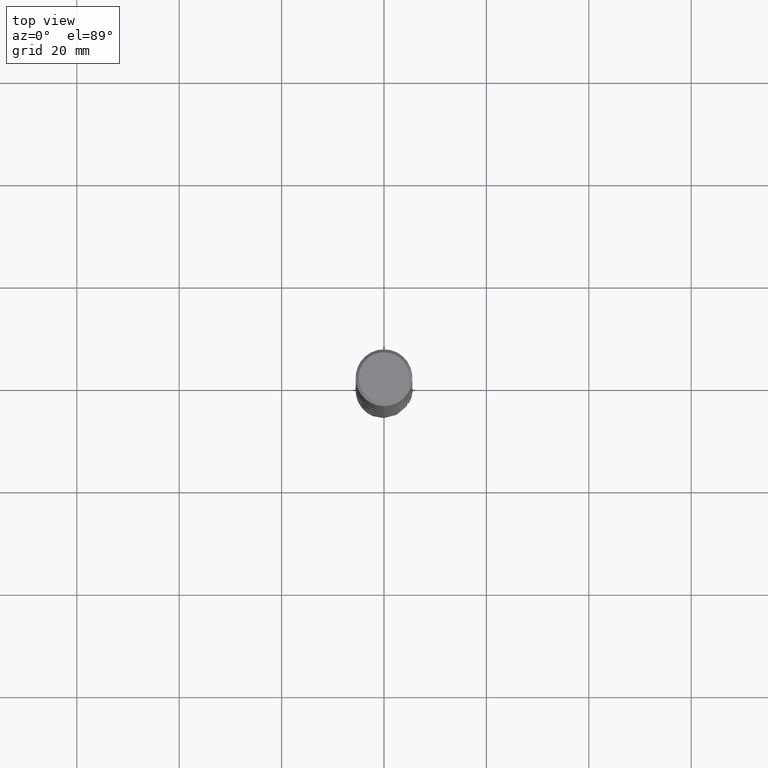
[diagram: clean part render]
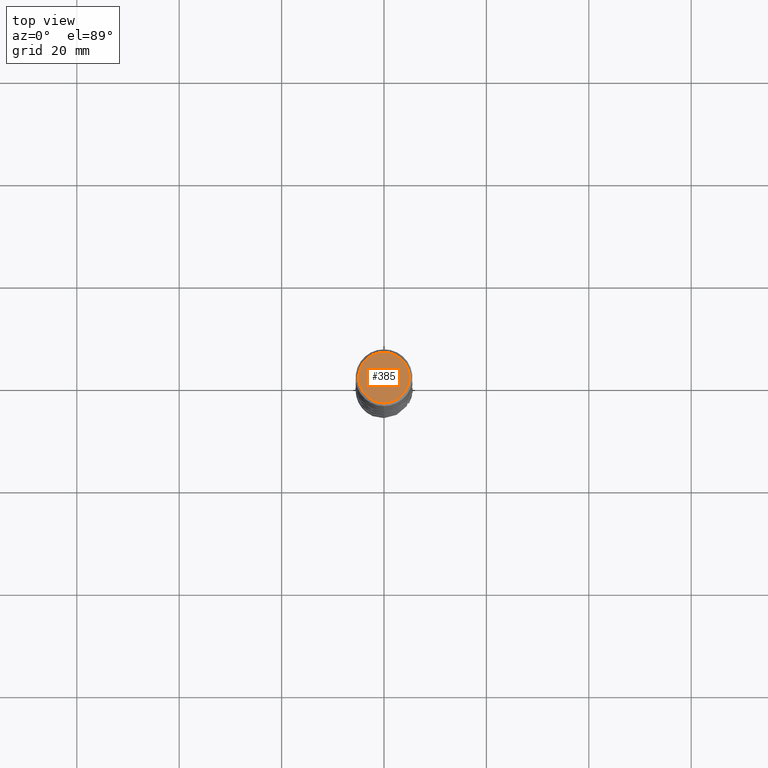
[diagram: same view with one face highlighted and labeled with its STEP entity id]
A machine part, top view. The second image highlights one B-rep face of the part: STEP entity #385.
In plain terms, the highlighted planar face has unit normal (-0, 0, 1).
Its self-contained STEP definition (entity closure, byte-faithful):
#275=EDGE_CURVE('',#373,#389,#759,.T.);
#373=VERTEX_POINT('',#868);
#385=ADVANCED_FACE('',(#880),#881,.T.);
#389=VERTEX_POINT('',#885);
#689=EDGE_CURVE('',#389,#373,#1209,.T.);
#759=CIRCLE('',#1283,4.95);
#868=CARTESIAN_POINT('',(6.06180145142077E-016,-4.95,0.0));
#880=FACE_OUTER_BOUND('',#2982,.T.);
#881=PLANE('',#2983);
#885=CARTESIAN_POINT('',(0.0,4.95,0.0));
#1209=CIRCLE('',#7993,4.95);
#1283=AXIS2_PLACEMENT_3D('',#8249,#8250,#8251);
#2982=EDGE_LOOP('',(#8403,#8404));
#2983=AXIS2_PLACEMENT_3D('',#8405,#8406,#8407);
#7993=AXIS2_PLACEMENT_3D('',#8733,#8734,#8735);
#8249=CARTESIAN_POINT('',(0.0,0.0,0.0));
#8250=DIRECTION('',(0.0,0.0,-1.0));
#8251=DIRECTION('',(0.0,1.0,0.0));
#8403=ORIENTED_EDGE('',*,*,#689,.F.);
#8404=ORIENTED_EDGE('',*,*,#275,.F.);
#8405=CARTESIAN_POINT('',(0.0,2.475,0.0));
#8406=DIRECTION('',(-0.0,0.0,1.0));
#8407=DIRECTION('',(0.0,-1.0,0.0));
#8733=CARTESIAN_POINT('',(0.0,0.0,0.0));
#8734=DIRECTION('',(0.0,0.0,-1.0));
#8735=DIRECTION('',(0.0,1.0,0.0));